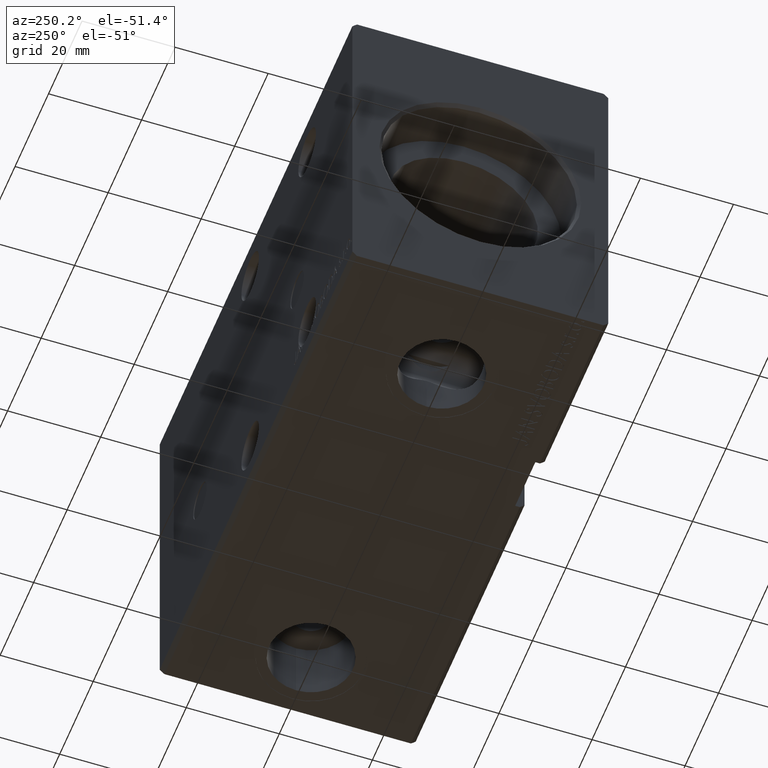
[diagram: clean part render]
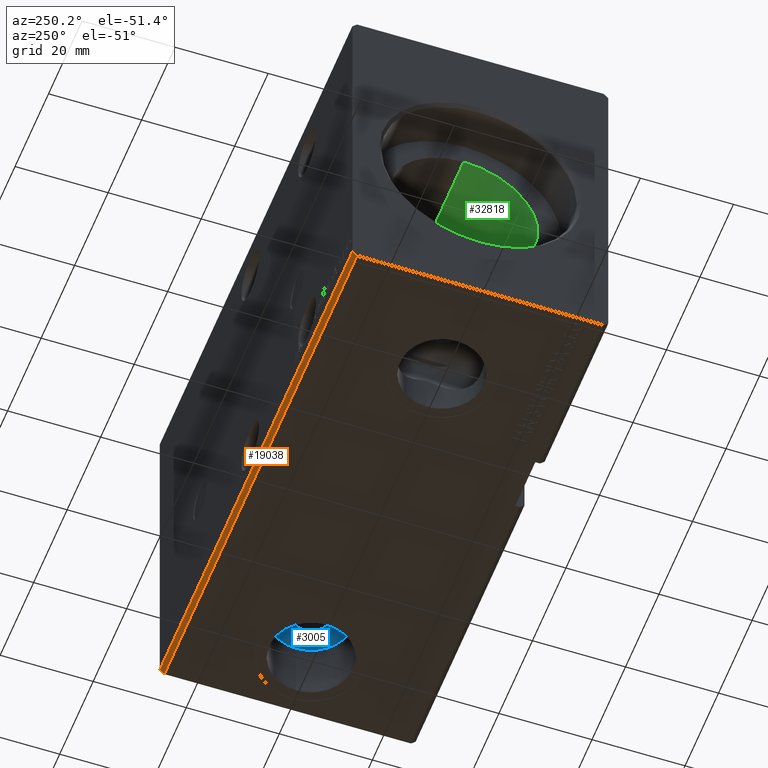
[diagram: same view with three faces highlighted in distinct colors, each labeled with its STEP entity id]
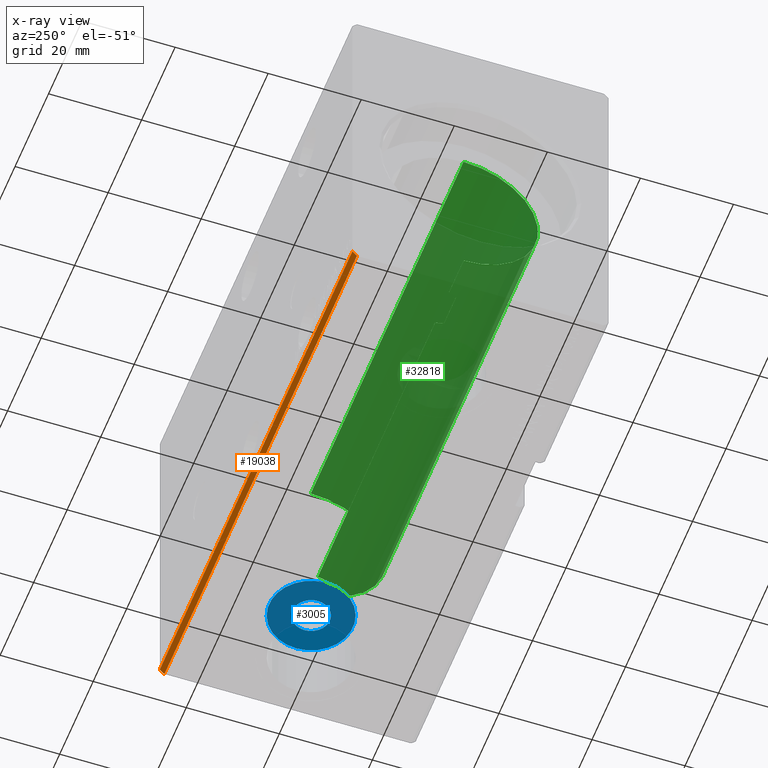
[diagram: x-ray of the same camera — body ghosted, the three highlighted faces saturated]
A machine part, auxiliary view with three faces highlighted in distinct colors.
The next image is the same camera in x-ray (body ghosted, the three faces saturated) — at least one of them is partly hidden behind the body in this view.
Their STEP definitions:

[orange] entity #19038 — the highlighted planar face has unit normal (0, -0.7071, 0.7071).
#1364 = ORIENTED_EDGE ( 'NONE', *, *, #26829, .T. ) ;
#3156 = EDGE_CURVE ( 'NONE', #20498, #22488, #26589, .T. ) ;
#3528 = AXIS2_PLACEMENT_3D ( 'NONE', #25138, #12780, #33479 ) ;
#3646 = VECTOR ( 'NONE', #7728, 1000.000000000000000 ) ;
#3943 = LINE ( 'NONE', #38224, #3646 ) ;
#4657 = CARTESIAN_POINT ( 'NONE',  ( 115.0000000000000000, 26.50000000000000711, -37.49999999999999289 ) ) ;
#5114 = CARTESIAN_POINT ( 'NONE',  ( 115.0000000000000000, 26.50000000000000711, -37.49999999999999289 ) ) ;
#7576 = VERTEX_POINT ( 'NONE', #23808 ) ;
#7728 = DIRECTION ( 'NONE',  ( -1.000000000000000000, -0.000000000000000000, -0.000000000000000000 ) ) ;
#9013 = CARTESIAN_POINT ( 'NONE',  ( 115.0000000000000000, 26.50000000000000711, -37.49999999999999289 ) ) ;
#10777 = VECTOR ( 'NONE', #17109, 1000.000000000000114 ) ;
#12780 = DIRECTION ( 'NONE',  ( 0.000000000000000000, -0.7071067811865475727, 0.7071067811865475727 ) ) ;
#13166 = VECTOR ( 'NONE', #38926, 1000.000000000000000 ) ;
#15127 = CARTESIAN_POINT ( 'NONE',  ( 0.000000000000000000, 26.50000000000000711, -37.49999999999999289 ) ) ;
#15972 = PLANE ( 'NONE',  #3528 ) ;
#17109 = DIRECTION ( 'NONE',  ( 0.000000000000000000, 0.7071067811865474617, 0.7071067811865474617 ) ) ;
#18087 = EDGE_LOOP ( 'NONE', ( #1364, #31077, #26978, #19946 ) ) ;
#19038 = ADVANCED_FACE ( 'NONE', ( #21747 ), #15972, .F. ) ;
#19946 = ORIENTED_EDGE ( 'NONE', *, *, #3156, .T. ) ;
#20498 = VERTEX_POINT ( 'NONE', #4657 ) ;
#20556 = VERTEX_POINT ( 'NONE', #31984 ) ;
#21747 = FACE_OUTER_BOUND ( 'NONE', #18087, .T. ) ;
#22488 = VERTEX_POINT ( 'NONE', #28795 ) ;
#23808 = CARTESIAN_POINT ( 'NONE',  ( 115.0000000000000000, 27.50000000000000711, -36.49999999999999289 ) ) ;
#24366 = EDGE_CURVE ( 'NONE', #7576, #20556, #3943, .T. ) ;
#24905 = LINE ( 'NONE', #15127, #28547 ) ;
#25138 = CARTESIAN_POINT ( 'NONE',  ( 115.0000000000000000, 26.50000000000000711, -37.49999999999999289 ) ) ;
#26589 = LINE ( 'NONE', #9013, #13166 ) ;
#26829 = EDGE_CURVE ( 'NONE', #22488, #20556, #24905, .T. ) ;
#26978 = ORIENTED_EDGE ( 'NONE', *, *, #30085, .F. ) ;
#28547 = VECTOR ( 'NONE', #30263, 1000.000000000000114 ) ;
#28795 = CARTESIAN_POINT ( 'NONE',  ( 0.000000000000000000, 26.50000000000000711, -37.49999999999999289 ) ) ;
#30085 = EDGE_CURVE ( 'NONE', #20498, #7576, #32622, .T. ) ;
#30263 = DIRECTION ( 'NONE',  ( 0.000000000000000000, 0.7071067811865474617, 0.7071067811865474617 ) ) ;
#31077 = ORIENTED_EDGE ( 'NONE', *, *, #24366, .F. ) ;
#31984 = CARTESIAN_POINT ( 'NONE',  ( 0.000000000000000000, 27.50000000000000711, -36.49999999999999289 ) ) ;
#32622 = LINE ( 'NONE', #5114, #10777 ) ;
#33479 = DIRECTION ( 'NONE',  ( 0.000000000000000000, -0.7071067811865474617, -0.7071067811865474617 ) ) ;
#38224 = CARTESIAN_POINT ( 'NONE',  ( 115.0000000000000000, 27.50000000000000711, -36.49999999999999289 ) ) ;
#38926 = DIRECTION ( 'NONE',  ( -1.000000000000000000, -0.000000000000000000, -0.000000000000000000 ) ) ;

[blue] entity #3005 — the highlighted planar face has unit normal (0, 0, -1).
#500 = EDGE_CURVE ( 'NONE', #22731, #1447, #39449, .T. ) ;
#624 = VERTEX_POINT ( 'NONE', #36233 ) ;
#1447 = VERTEX_POINT ( 'NONE', #39321 ) ;
#2480 = PLANE ( 'NONE',  #24589 ) ;
#3005 = ADVANCED_FACE ( 'NONE', ( #3056, #26431 ), #2480, .T. ) ;
#3056 = FACE_BOUND ( 'NONE', #7369, .T. ) ;
#3368 = DIRECTION ( 'NONE',  ( -1.000000000000000000, 0.000000000000000000, 0.000000000000000000 ) ) ;
#3837 = DIRECTION ( 'NONE',  ( -1.000000000000000000, 0.000000000000000000, 0.000000000000000000 ) ) ;
#5073 = AXIS2_PLACEMENT_3D ( 'NONE', #6365, #18565, #3368 ) ;
#5104 = CIRCLE ( 'NONE', #35678, 4.000000000000003553 ) ;
#5717 = VERTEX_POINT ( 'NONE', #39011 ) ;
#6365 = CARTESIAN_POINT ( 'NONE',  ( 101.0000000000000000, -1.424819663353346309E-14, -23.79999999999998650 ) ) ;
#6388 = EDGE_CURVE ( 'NONE', #624, #5717, #20999, .T. ) ;
#6591 = EDGE_LOOP ( 'NONE', ( #12848, #28016 ) ) ;
#7369 = EDGE_LOOP ( 'NONE', ( #8953, #15450 ) ) ;
#8785 = CARTESIAN_POINT ( 'NONE',  ( 101.0000000000000000, -1.424819663353346309E-14, -23.79999999999998650 ) ) ;
#8953 = ORIENTED_EDGE ( 'NONE', *, *, #32999, .F. ) ;
#9175 = DIRECTION ( 'NONE',  ( 0.000000000000000000, 0.000000000000000000, -1.000000000000000000 ) ) ;
#9452 = DIRECTION ( 'NONE',  ( -1.000000000000000000, 0.000000000000000000, -0.000000000000000000 ) ) ;
#12848 = ORIENTED_EDGE ( 'NONE', *, *, #6388, .T. ) ;
#13033 = DIRECTION ( 'NONE',  ( 0.000000000000000000, 0.000000000000000000, -1.000000000000000000 ) ) ;
#15272 = AXIS2_PLACEMENT_3D ( 'NONE', #15415, #21200, #24785 ) ;
#15415 = CARTESIAN_POINT ( 'NONE',  ( 101.0000000000000000, -1.424819663353346309E-14, -23.79999999999998650 ) ) ;
#15450 = ORIENTED_EDGE ( 'NONE', *, *, #500, .F. ) ;
#18491 = EDGE_CURVE ( 'NONE', #5717, #624, #36626, .T. ) ;
#18565 = DIRECTION ( 'NONE',  ( 0.000000000000000000, 0.000000000000000000, -1.000000000000000000 ) ) ;
#19466 = AXIS2_PLACEMENT_3D ( 'NONE', #8785, #9175, #26764 ) ;
#20999 = CIRCLE ( 'NONE', #15272, 8.999999999999994671 ) ;
#21200 = DIRECTION ( 'NONE',  ( 0.000000000000000000, 0.000000000000000000, -1.000000000000000000 ) ) ;
#21632 = DIRECTION ( 'NONE',  ( 0.000000000000000000, 0.000000000000000000, -1.000000000000000000 ) ) ;
#22731 = VERTEX_POINT ( 'NONE', #28180 ) ;
#24589 = AXIS2_PLACEMENT_3D ( 'NONE', #38575, #21632, #9452 ) ;
#24785 = DIRECTION ( 'NONE',  ( -1.000000000000000000, 0.000000000000000000, 0.000000000000000000 ) ) ;
#26431 = FACE_OUTER_BOUND ( 'NONE', #6591, .T. ) ;
#26764 = DIRECTION ( 'NONE',  ( -1.000000000000000000, 0.000000000000000000, 0.000000000000000000 ) ) ;
#28016 = ORIENTED_EDGE ( 'NONE', *, *, #18491, .T. ) ;
#28180 = CARTESIAN_POINT ( 'NONE',  ( 105.0000000000000142, -1.375833791387452092E-14, -23.79999999999998650 ) ) ;
#30951 = CARTESIAN_POINT ( 'NONE',  ( 101.0000000000000000, -1.424819663353346309E-14, -23.79999999999998650 ) ) ;
#32999 = EDGE_CURVE ( 'NONE', #1447, #22731, #5104, .T. ) ;
#35678 = AXIS2_PLACEMENT_3D ( 'NONE', #30951, #13033, #3837 ) ;
#36233 = CARTESIAN_POINT ( 'NONE',  ( 92.00000000000001421, -1.424819663353346309E-14, -23.79999999999998650 ) ) ;
#36626 = CIRCLE ( 'NONE', #19466, 8.999999999999994671 ) ;
#38575 = CARTESIAN_POINT ( 'NONE',  ( 0.000000000000000000, 0.000000000000000000, -23.79999999999998650 ) ) ;
#39011 = CARTESIAN_POINT ( 'NONE',  ( 110.0000000000000000, -1.314601451430084518E-14, -23.79999999999998650 ) ) ;
#39321 = CARTESIAN_POINT ( 'NONE',  ( 97.00000000000000000, -1.424819663353346309E-14, -23.79999999999998650 ) ) ;
#39449 = CIRCLE ( 'NONE', #5073, 4.000000000000003553 ) ;

[green] entity #32818 — the highlighted cylindrical surface (partial cylindrical patch) has radius 16 mm, axis along (-1, -0, -0).
#449 = VERTEX_POINT ( 'NONE', #9972 ) ;
#663 = VERTEX_POINT ( 'NONE', #31050 ) ;
#1262 = ORIENTED_EDGE ( 'NONE', *, *, #8647, .T. ) ;
#1461 = CARTESIAN_POINT ( 'NONE',  ( 97.00000000000000000, -0.3077040434552357762, -16.00000000000000000 ) ) ;
#1850 = VERTEX_POINT ( 'NONE', #28040 ) ;
#2456 = FACE_OUTER_BOUND ( 'NONE', #4430, .T. ) ;
#3248 = CARTESIAN_POINT ( 'NONE',  ( 101.2000000000000028, 0.000000000000000000, 16.00000000000000000 ) ) ;
#3395 = DIRECTION ( 'NONE',  ( 0.000000000000000000, 0.000000000000000000, 1.000000000000000000 ) ) ;
#4190 = VERTEX_POINT ( 'NONE', #4403 ) ;
#4403 = CARTESIAN_POINT ( 'NONE',  ( 101.2000000000000028, -1.786057109949259036, -15.89999999999998970 ) ) ;
#4430 = EDGE_LOOP ( 'NONE', ( #36739, #11174, #5507, #37890, #19868, #21084, #1262, #18594, #29430, #19312 ) ) ;
#4452 = CARTESIAN_POINT ( 'NONE',  ( 97.17803745058905918, -1.219576022118251890, -15.95627408098855149 ) ) ;
#4820 = EDGE_CURVE ( 'NONE', #11859, #8373, #35409, .T. ) ;
#5482 = CARTESIAN_POINT ( 'NONE',  ( 101.2000000000000028, 1.959434878635765131E-15, -16.00000000000000000 ) ) ;
#5507 = ORIENTED_EDGE ( 'NONE', *, *, #4820, .T. ) ;
#6185 = DIRECTION ( 'NONE',  ( -1.000000000000000000, 0.000000000000000000, 0.000000000000000000 ) ) ;
#6701 = DIRECTION ( 'NONE',  ( -1.000000000000000000, 0.000000000000000000, 0.000000000000000000 ) ) ;
#7043 = AXIS2_PLACEMENT_3D ( 'NONE', #36422, #6701, #21294 ) ;
#7323 = CARTESIAN_POINT ( 'NONE',  ( 97.42089396636538368, -1.786057109949259036, -15.89999999999998970 ) ) ;
#8187 = VECTOR ( 'NONE', #29538, 1000.000000000000000 ) ;
#8252 = CYLINDRICAL_SURFACE ( 'NONE', #30583, 16.00000000000000000 ) ;
#8305 = LINE ( 'NONE', #5482, #30264 ) ;
#8373 = VERTEX_POINT ( 'NONE', #26279 ) ;
#8647 = EDGE_CURVE ( 'NONE', #1850, #37877, #19036, .T. ) ;
#8730 = LINE ( 'NONE', #33059, #18213 ) ;
#9972 = CARTESIAN_POINT ( 'NONE',  ( 19.42089396636538368, -1.786057109949259036, -15.89999999999998970 ) ) ;
#10643 = CARTESIAN_POINT ( 'NONE',  ( 97.00000000000000000, 1.959437589923279121E-15, -16.00000000000000000 ) ) ;
#10858 = DIRECTION ( 'NONE',  ( 0.000000000000000000, 0.000000000000000000, 1.000000000000000000 ) ) ;
#11174 = ORIENTED_EDGE ( 'NONE', *, *, #22314, .T. ) ;
#11401 = LINE ( 'NONE', #38490, #8187 ) ;
#11653 = DIRECTION ( 'NONE',  ( -1.000000000000000000, -0.000000000000000000, -0.000000000000000000 ) ) ;
#11859 = VERTEX_POINT ( 'NONE', #35623 ) ;
#13972 = CARTESIAN_POINT ( 'NONE',  ( 19.17803745058905562, -1.219576022118254111, -15.95627408098855504 ) ) ;
#16252 = DIRECTION ( 'NONE',  ( 1.000000000000000000, 0.000000000000000000, 0.000000000000000000 ) ) ;
#17875 = EDGE_CURVE ( 'NONE', #38339, #1850, #8305, .T. ) ;
#18213 = VECTOR ( 'NONE', #24094, 1000.000000000000000 ) ;
#18594 = ORIENTED_EDGE ( 'NONE', *, *, #28030, .F. ) ;
#18905 = VECTOR ( 'NONE', #16252, 1000.000000000000000 ) ;
#19036 = CIRCLE ( 'NONE', #33728, 16.00000000000000000 ) ;
#19312 = ORIENTED_EDGE ( 'NONE', *, *, #21816, .F. ) ;
#19632 = CARTESIAN_POINT ( 'NONE',  ( 97.28229384797884904, -1.508314300261685670, -15.93119902641380925 ) ) ;
#19868 = ORIENTED_EDGE ( 'NONE', *, *, #27609, .T. ) ;
#20154 = EDGE_CURVE ( 'NONE', #449, #8373, #8730, .T. ) ;
#21084 = ORIENTED_EDGE ( 'NONE', *, *, #17875, .T. ) ;
#21294 = DIRECTION ( 'NONE',  ( 0.000000000000000000, 0.000000000000000000, 1.000000000000000000 ) ) ;
#21650 = CARTESIAN_POINT ( 'NONE',  ( 26.96441505284474971, -0.6159808737045043836, -15.99099227927343314 ) ) ;
#21816 = EDGE_CURVE ( 'NONE', #38717, #4190, #25226, .T. ) ;
#22314 = EDGE_CURVE ( 'NONE', #663, #11859, #30197, .T. ) ;
#22545 = EDGE_CURVE ( 'NONE', #38717, #663, #29152, .T. ) ;
#22734 = CARTESIAN_POINT ( 'NONE',  ( 19.03643380211522995, -0.6204082509210444574, -15.99078302721733102 ) ) ;
#22977 = CIRCLE ( 'NONE', #7043, 16.00000000000000000 ) ;
#23368 = VECTOR ( 'NONE', #29295, 1000.000000000000000 ) ;
#24094 = DIRECTION ( 'NONE',  ( 1.000000000000000000, 0.000000000000000000, 0.000000000000000000 ) ) ;
#24436 = CARTESIAN_POINT ( 'NONE',  ( 27.00000000000000000, -3.043259601029998868E-15, -16.00000000000000000 ) ) ;
#25226 = LINE ( 'NONE', #31767, #18905 ) ;
#25546 = CARTESIAN_POINT ( 'NONE',  ( 19.00000000000000000, -3.533112898183174258E-15, -16.00000000000000000 ) ) ;
#26279 = CARTESIAN_POINT ( 'NONE',  ( 26.57910603363461277, -1.786057109949259036, -15.89999999999998970 ) ) ;
#26825 = CARTESIAN_POINT ( 'NONE',  ( 9.999999999999994671, 0.000000000000000000, 0.000000000000000000 ) ) ;
#27609 = EDGE_CURVE ( 'NONE', #449, #38339, #36491, .T. ) ;
#27823 = CARTESIAN_POINT ( 'NONE',  ( 27.00000000000000000, -0.3073137169939997304, -16.00000000000000000 ) ) ;
#28030 = EDGE_CURVE ( 'NONE', #35700, #37877, #11401, .T. ) ;
#28040 = CARTESIAN_POINT ( 'NONE',  ( 9.999999999999994671, 1.959434878635765131E-15, -16.00000000000000000 ) ) ;
#28889 = CARTESIAN_POINT ( 'NONE',  ( 101.2000000000000028, 1.959434878635765131E-15, -16.00000000000000000 ) ) ;
#29152 = B_SPLINE_CURVE_WITH_KNOTS ( 'NONE', 3,
 ( #34759, #19632, #4452, #31772, #1461, #10643 ),
 .UNSPECIFIED., .F., .F.,
 ( 4, 2, 4 ),
 ( 0.000000000000000000, 0.0009228726212815560777, 0.001845745242563112155 ),
 .UNSPECIFIED. ) ;
#29295 = DIRECTION ( 'NONE',  ( -1.000000000000000000, -0.000000000000000000, -0.000000000000000000 ) ) ;
#29430 = ORIENTED_EDGE ( 'NONE', *, *, #34715, .F. ) ;
#29538 = DIRECTION ( 'NONE',  ( -1.000000000000000000, -0.000000000000000000, -0.000000000000000000 ) ) ;
#30197 = LINE ( 'NONE', #28889, #23368 ) ;
#30264 = VECTOR ( 'NONE', #33389, 1000.000000000000000 ) ;
#30583 = AXIS2_PLACEMENT_3D ( 'NONE', #35362, #11653, #10858 ) ;
#31050 = CARTESIAN_POINT ( 'NONE',  ( 97.00000000000000000, 1.959437589923279121E-15, -16.00000000000000000 ) ) ;
#31767 = CARTESIAN_POINT ( 'NONE',  ( 101.2000000000000028, -1.786057109949259036, -15.89999999999998970 ) ) ;
#31772 = CARTESIAN_POINT ( 'NONE',  ( 97.03643380211522640, -0.6204082509210404606, -15.99078302721733102 ) ) ;
#32283 = CARTESIAN_POINT ( 'NONE',  ( 19.28229384797884194, -1.508314300261687002, -15.93119902641381991 ) ) ;
#32818 = ADVANCED_FACE ( 'NONE', ( #2456 ), #8252, .F. ) ;
#33059 = CARTESIAN_POINT ( 'NONE',  ( 101.2000000000000028, -1.786057109949259036, -15.89999999999998970 ) ) ;
#33389 = DIRECTION ( 'NONE',  ( -1.000000000000000000, -0.000000000000000000, -0.000000000000000000 ) ) ;
#33728 = AXIS2_PLACEMENT_3D ( 'NONE', #26825, #6185, #3395 ) ;
#33989 = CARTESIAN_POINT ( 'NONE',  ( 26.71754120084598938, -1.508644848340498168, -15.93116189573794195 ) ) ;
#34070 = CARTESIAN_POINT ( 'NONE',  ( 9.999999999999994671, 0.000000000000000000, 16.00000000000000000 ) ) ;
#34715 = EDGE_CURVE ( 'NONE', #4190, #35700, #22977, .T. ) ;
#34759 = CARTESIAN_POINT ( 'NONE',  ( 97.42089396636538368, -1.786057109949259036, -15.89999999999998970 ) ) ;
#35362 = CARTESIAN_POINT ( 'NONE',  ( 101.2000000000000028, 0.000000000000000000, 0.000000000000000000 ) ) ;
#35409 = B_SPLINE_CURVE_WITH_KNOTS ( 'NONE', 3,
 ( #24436, #27823, #21650, #36570, #33989, #36773 ),
 .UNSPECIFIED., .F., .F.,
 ( 4, 2, 4 ),
 ( 0.001845745242563114324, 0.002767447188281244030, 0.003689149133999373303 ),
 .UNSPECIFIED. ) ;
#35479 = CARTESIAN_POINT ( 'NONE',  ( 19.00000000000000000, -3.533112898183174258E-15, -16.00000000000000000 ) ) ;
#35623 = CARTESIAN_POINT ( 'NONE',  ( 27.00000000000000000, -3.043259601029998868E-15, -16.00000000000000000 ) ) ;
#35700 = VERTEX_POINT ( 'NONE', #3248 ) ;
#36422 = CARTESIAN_POINT ( 'NONE',  ( 101.2000000000000028, 0.000000000000000000, 0.000000000000000000 ) ) ;
#36491 = B_SPLINE_CURVE_WITH_KNOTS ( 'NONE', 3,
 ( #37870, #32283, #13972, #22734, #38463, #25546 ),
 .UNSPECIFIED., .F., .F.,
 ( 4, 2, 4 ),
 ( 0.000000000000000000, 0.0009228726212815540177, 0.001845745242563107602 ),
 .UNSPECIFIED. ) ;
#36570 = CARTESIAN_POINT ( 'NONE',  ( 26.82224888748791969, -1.219193417833760451, -15.95634149554536130 ) ) ;
#36739 = ORIENTED_EDGE ( 'NONE', *, *, #22545, .T. ) ;
#36773 = CARTESIAN_POINT ( 'NONE',  ( 26.57910603363461277, -1.786057109949259036, -15.89999999999998970 ) ) ;
#37870 = CARTESIAN_POINT ( 'NONE',  ( 19.42089396636538368, -1.786057109949259036, -15.89999999999998970 ) ) ;
#37877 = VERTEX_POINT ( 'NONE', #34070 ) ;
#37890 = ORIENTED_EDGE ( 'NONE', *, *, #20154, .F. ) ;
#38339 = VERTEX_POINT ( 'NONE', #35479 ) ;
#38463 = CARTESIAN_POINT ( 'NONE',  ( 19.00000000000000355, -0.3077040434552402726, -16.00000000000000355 ) ) ;
#38490 = CARTESIAN_POINT ( 'NONE',  ( 101.2000000000000028, 0.000000000000000000, 16.00000000000000000 ) ) ;
#38717 = VERTEX_POINT ( 'NONE', #7323 ) ;